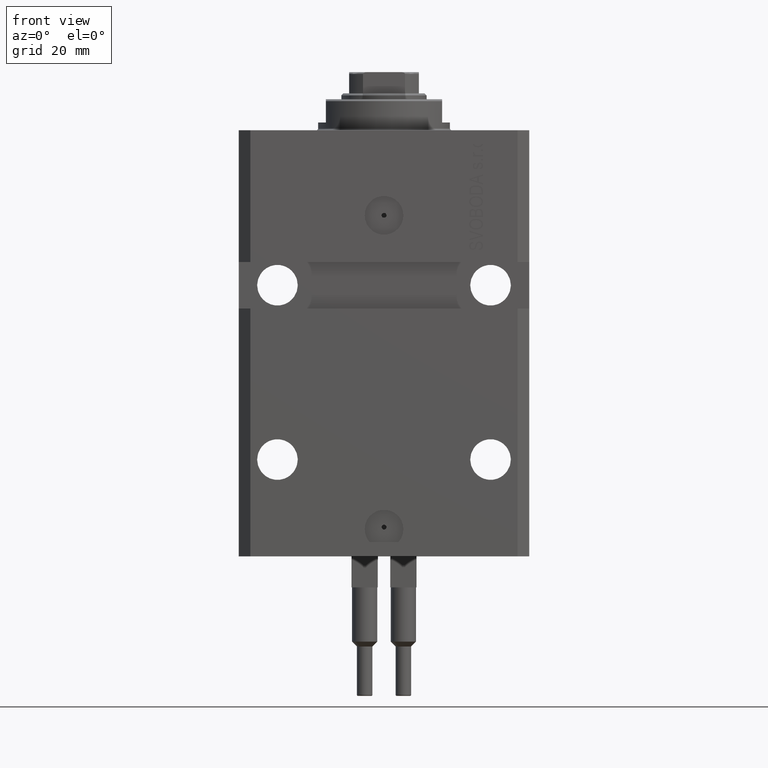
[diagram: clean part render]
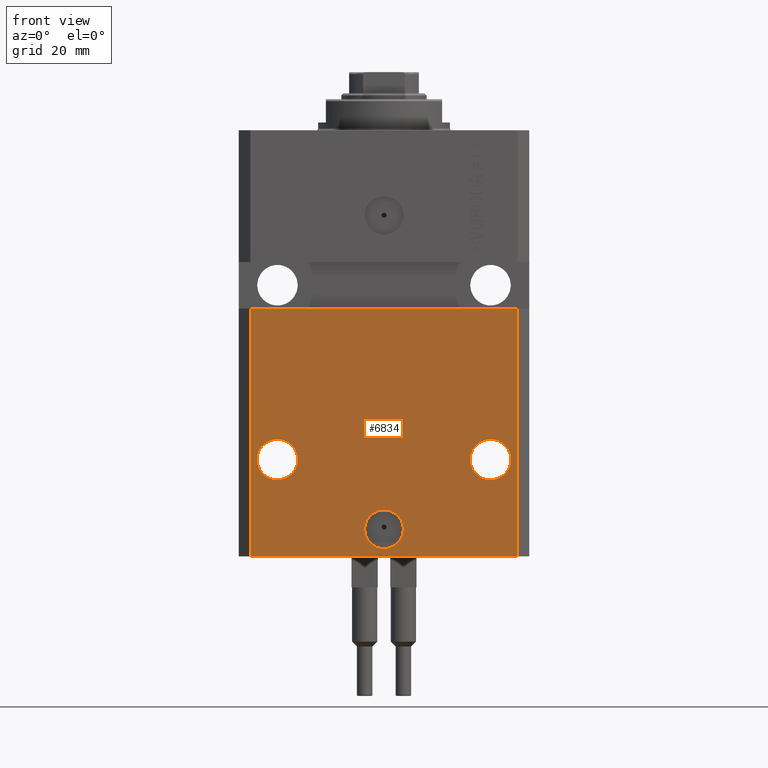
[diagram: same view with one face highlighted and labeled with its STEP entity id]
A machine part, front view. The second image highlights one B-rep face of the part: STEP entity #6834.
In plain terms, the highlighted planar face has unit normal (0, -1, 0).
Its self-contained STEP definition (entity closure, byte-faithful):
#48 = ORIENTED_EDGE ( 'NONE', *, *, #7605, .F. ) ;
#406 = DIRECTION ( 'NONE',  ( 1.000000000000000000, 0.000000000000000000, 0.000000000000000000 ) ) ;
#1479 = ORIENTED_EDGE ( 'NONE', *, *, #12681, .F. ) ;
#2046 = ORIENTED_EDGE ( 'NONE', *, *, #25853, .F. ) ;
#2629 = EDGE_LOOP ( 'NONE', ( #48, #44077 ) ) ;
#3164 = AXIS2_PLACEMENT_3D ( 'NONE', #8364, #12498, #16396 ) ;
#4079 = DIRECTION ( 'NONE',  ( 1.176083712526788232E-16, -1.000000000000000000, 0.000000000000000000 ) ) ;
#4728 = AXIS2_PLACEMENT_3D ( 'NONE', #8571, #27056, #45356 ) ;
#5280 = CARTESIAN_POINT ( 'NONE',  ( -34.49999999999998579, -27.49999999999999645, -110.0000000000000000 ) ) ;
#6834 = ADVANCED_FACE ( 'NONE', ( #9595, #36346, #39999, #20788 ), #45962, .T. ) ;
#7259 = VERTEX_POINT ( 'NONE', #10259 ) ;
#7605 = EDGE_CURVE ( 'NONE', #7259, #28796, #37993, .T. ) ;
#8312 = EDGE_CURVE ( 'NONE', #35985, #31598, #33349, .T. ) ;
#8364 = CARTESIAN_POINT ( 'NONE',  ( 0.000000000000000000, -27.49999999999999645, -103.0000000000000000 ) ) ;
#8468 = DIRECTION ( 'NONE',  ( 0.000000000000000000, 0.000000000000000000, 1.000000000000000000 ) ) ;
#8571 = CARTESIAN_POINT ( 'NONE',  ( 27.50000000000001421, -27.49999999999999289, -84.99999999999998579 ) ) ;
#9489 = DIRECTION ( 'NONE',  ( 1.176083712526788232E-16, -1.000000000000000000, 0.000000000000000000 ) ) ;
#9595 = FACE_BOUND ( 'NONE', #28133, .T. ) ;
#9903 = CARTESIAN_POINT ( 'NONE',  ( 34.49999999999999289, -27.49999999999999289, -46.00000000000000711 ) ) ;
#10172 = ORIENTED_EDGE ( 'NONE', *, *, #10455, .T. ) ;
#10259 = CARTESIAN_POINT ( 'NONE',  ( -22.25000000000002132, -27.50000000000000000, -84.99999999999998579 ) ) ;
#10455 = EDGE_CURVE ( 'NONE', #19749, #16231, #40290, .T. ) ;
#10530 = VECTOR ( 'NONE', #23579, 1000.000000000000000 ) ;
#10927 = CARTESIAN_POINT ( 'NONE',  ( -5.000000000000006217, -27.49999999999999645, -103.0000000000000000 ) ) ;
#11086 = CARTESIAN_POINT ( 'NONE',  ( -34.49999999999998579, -27.49999999999999645, -110.0000000000000000 ) ) ;
#11837 = AXIS2_PLACEMENT_3D ( 'NONE', #19647, #4079, #406 ) ;
#12498 = DIRECTION ( 'NONE',  ( 1.176083712526788232E-16, -1.000000000000000000, 0.000000000000000000 ) ) ;
#12681 = EDGE_CURVE ( 'NONE', #23063, #36063, #18728, .T. ) ;
#13500 = DIRECTION ( 'NONE',  ( 0.000000000000000000, -1.000000000000000000, 0.000000000000000000 ) ) ;
#14248 = EDGE_CURVE ( 'NONE', #16231, #42901, #45287, .T. ) ;
#14740 = DIRECTION ( 'NONE',  ( 1.000000000000000000, 9.251858538542972814E-17, -9.251858538542972814E-17 ) ) ;
#16046 = CARTESIAN_POINT ( 'NONE',  ( 34.49999999999999289, -27.49999999999999645, -110.0000000000000000 ) ) ;
#16098 = EDGE_LOOP ( 'NONE', ( #25781, #17211 ) ) ;
#16231 = VERTEX_POINT ( 'NONE', #42938 ) ;
#16396 = DIRECTION ( 'NONE',  ( 1.000000000000000000, 0.000000000000000000, 0.000000000000000000 ) ) ;
#17211 = ORIENTED_EDGE ( 'NONE', *, *, #47545, .F. ) ;
#17912 = CARTESIAN_POINT ( 'NONE',  ( -37.50000000000000000, -27.50000000000000000, -46.00000000000000000 ) ) ;
#18728 = CIRCLE ( 'NONE', #3164, 5.000000000000006217 ) ;
#18943 = EDGE_LOOP ( 'NONE', ( #23174, #2046, #10172, #36996 ) ) ;
#19647 = CARTESIAN_POINT ( 'NONE',  ( 0.000000000000000000, -27.49999999999999645, -103.0000000000000000 ) ) ;
#19749 = VERTEX_POINT ( 'NONE', #37759 ) ;
#19935 = VERTEX_POINT ( 'NONE', #26631 ) ;
#20561 = CARTESIAN_POINT ( 'NONE',  ( 22.25000000000002132, -27.49999999999999289, -84.99999999999998579 ) ) ;
#20788 = FACE_OUTER_BOUND ( 'NONE', #18943, .T. ) ;
#21375 = ORIENTED_EDGE ( 'NONE', *, *, #46926, .F. ) ;
#21461 = EDGE_CURVE ( 'NONE', #28796, #7259, #23979, .T. ) ;
#22905 = DIRECTION ( 'NONE',  ( 1.176083712526788232E-16, -1.000000000000000000, 0.000000000000000000 ) ) ;
#23063 = VERTEX_POINT ( 'NONE', #26187 ) ;
#23174 = ORIENTED_EDGE ( 'NONE', *, *, #34313, .F. ) ;
#23579 = DIRECTION ( 'NONE',  ( 0.000000000000000000, 0.000000000000000000, 1.000000000000000000 ) ) ;
#23979 = CIRCLE ( 'NONE', #30207, 5.249999999999994671 ) ;
#24044 = VECTOR ( 'NONE', #8468, 1000.000000000000000 ) ;
#25518 = VECTOR ( 'NONE', #32975, 1000.000000000000000 ) ;
#25781 = ORIENTED_EDGE ( 'NONE', *, *, #8312, .F. ) ;
#25853 = EDGE_CURVE ( 'NONE', #19749, #19935, #41817, .T. ) ;
#26187 = CARTESIAN_POINT ( 'NONE',  ( 5.000000000000006217, -27.49999999999999645, -103.0000000000000000 ) ) ;
#26335 = AXIS2_PLACEMENT_3D ( 'NONE', #27732, #9489, #42607 ) ;
#26587 = CIRCLE ( 'NONE', #4728, 5.249999999999994671 ) ;
#26631 = CARTESIAN_POINT ( 'NONE',  ( -34.49999999999998579, -27.50000000000000000, -46.00000000000000000 ) ) ;
#27056 = DIRECTION ( 'NONE',  ( 1.176083712526788232E-16, -1.000000000000000000, 0.000000000000000000 ) ) ;
#27732 = CARTESIAN_POINT ( 'NONE',  ( -27.50000000000001421, -27.50000000000000000, -84.99999999999998579 ) ) ;
#27887 = AXIS2_PLACEMENT_3D ( 'NONE', #28816, #22905, #29051 ) ;
#28133 = EDGE_LOOP ( 'NONE', ( #1479, #21375 ) ) ;
#28270 = DIRECTION ( 'NONE',  ( 1.176083712526788232E-16, -1.000000000000000000, 0.000000000000000000 ) ) ;
#28796 = VERTEX_POINT ( 'NONE', #47500 ) ;
#28816 = CARTESIAN_POINT ( 'NONE',  ( 27.50000000000001421, -27.49999999999999289, -84.99999999999998579 ) ) ;
#29051 = DIRECTION ( 'NONE',  ( 1.000000000000000000, 0.000000000000000000, 0.000000000000000000 ) ) ;
#30197 = AXIS2_PLACEMENT_3D ( 'NONE', #47557, #13500, #43908 ) ;
#30207 = AXIS2_PLACEMENT_3D ( 'NONE', #47019, #28270, #36285 ) ;
#31598 = VERTEX_POINT ( 'NONE', #20561 ) ;
#32799 = CIRCLE ( 'NONE', #11837, 5.000000000000006217 ) ;
#32975 = DIRECTION ( 'NONE',  ( 1.000000000000000000, 0.000000000000000000, 0.000000000000000000 ) ) ;
#33349 = CIRCLE ( 'NONE', #27887, 5.249999999999994671 ) ;
#34313 = EDGE_CURVE ( 'NONE', #19935, #42901, #48094, .T. ) ;
#35985 = VERTEX_POINT ( 'NONE', #39184 ) ;
#36063 = VERTEX_POINT ( 'NONE', #10927 ) ;
#36285 = DIRECTION ( 'NONE',  ( -1.000000000000000000, 0.000000000000000000, 0.000000000000000000 ) ) ;
#36346 = FACE_BOUND ( 'NONE', #16098, .T. ) ;
#36996 = ORIENTED_EDGE ( 'NONE', *, *, #14248, .T. ) ;
#37759 = CARTESIAN_POINT ( 'NONE',  ( -34.49999999999998579, -27.49999999999999645, -110.0000000000000000 ) ) ;
#37993 = CIRCLE ( 'NONE', #26335, 5.249999999999994671 ) ;
#39184 = CARTESIAN_POINT ( 'NONE',  ( 32.75000000000000711, -27.49999999999999289, -84.99999999999998579 ) ) ;
#39999 = FACE_BOUND ( 'NONE', #2629, .T. ) ;
#40290 = LINE ( 'NONE', #11086, #25518 ) ;
#41444 = VECTOR ( 'NONE', #14740, 1000.000000000000000 ) ;
#41817 = LINE ( 'NONE', #5280, #24044 ) ;
#42607 = DIRECTION ( 'NONE',  ( -1.000000000000000000, 0.000000000000000000, 0.000000000000000000 ) ) ;
#42901 = VERTEX_POINT ( 'NONE', #9903 ) ;
#42938 = CARTESIAN_POINT ( 'NONE',  ( 34.49999999999999289, -27.49999999999999645, -110.0000000000000000 ) ) ;
#43908 = DIRECTION ( 'NONE',  ( 0.000000000000000000, -0.000000000000000000, -1.000000000000000000 ) ) ;
#44077 = ORIENTED_EDGE ( 'NONE', *, *, #21461, .F. ) ;
#45287 = LINE ( 'NONE', #16046, #10530 ) ;
#45356 = DIRECTION ( 'NONE',  ( 1.000000000000000000, 0.000000000000000000, 0.000000000000000000 ) ) ;
#45962 = PLANE ( 'NONE',  #30197 ) ;
#46926 = EDGE_CURVE ( 'NONE', #36063, #23063, #32799, .T. ) ;
#47019 = CARTESIAN_POINT ( 'NONE',  ( -27.50000000000001421, -27.50000000000000000, -84.99999999999998579 ) ) ;
#47500 = CARTESIAN_POINT ( 'NONE',  ( -32.75000000000000711, -27.50000000000000000, -84.99999999999998579 ) ) ;
#47545 = EDGE_CURVE ( 'NONE', #31598, #35985, #26587, .T. ) ;
#47557 = CARTESIAN_POINT ( 'NONE',  ( -34.49999999999998579, -27.49999999999999645, -110.0000000000000000 ) ) ;
#48094 = LINE ( 'NONE', #17912, #41444 ) ;